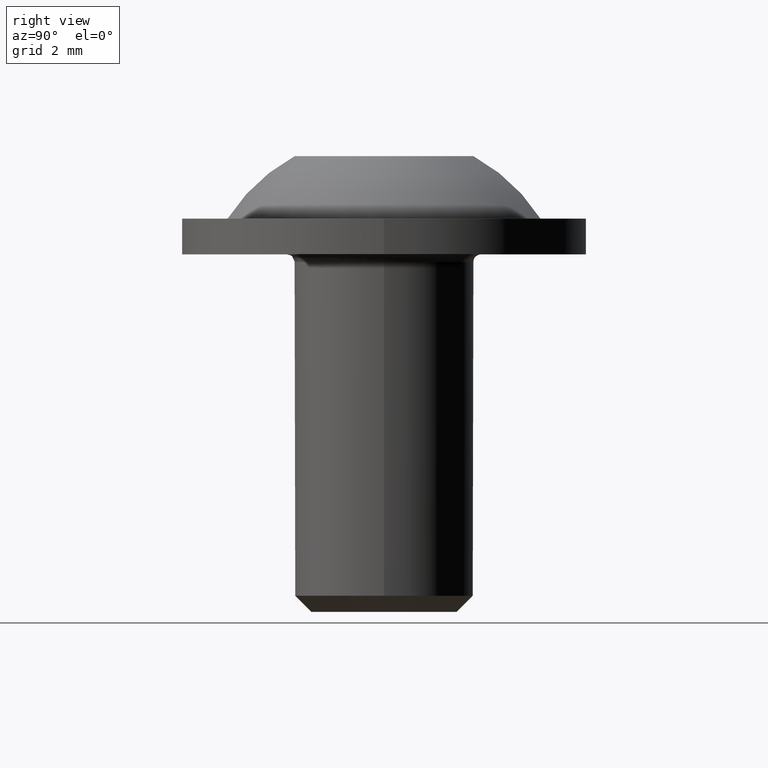
[diagram: clean part render]
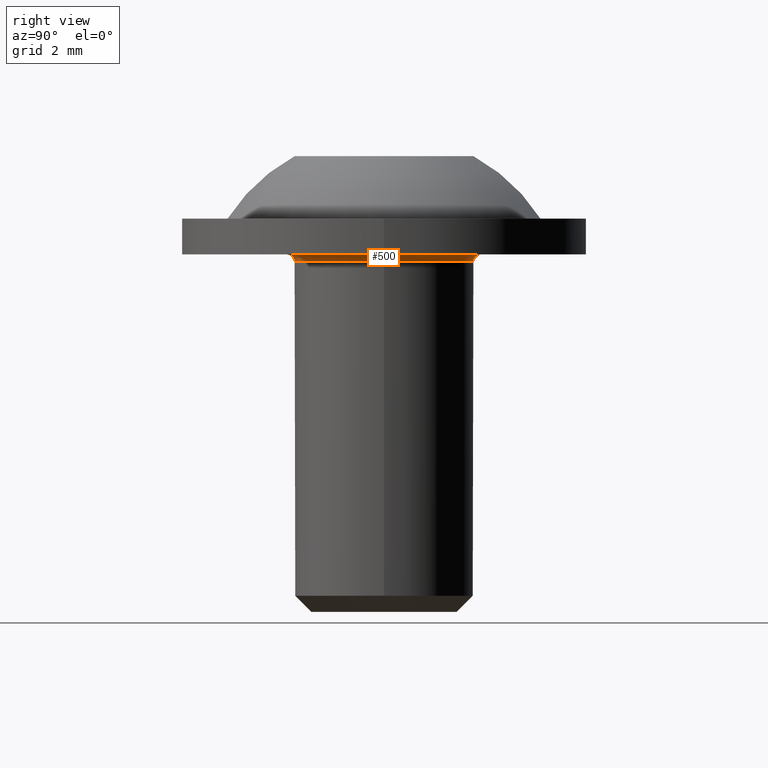
[diagram: same view with one face highlighted and labeled with its STEP entity id]
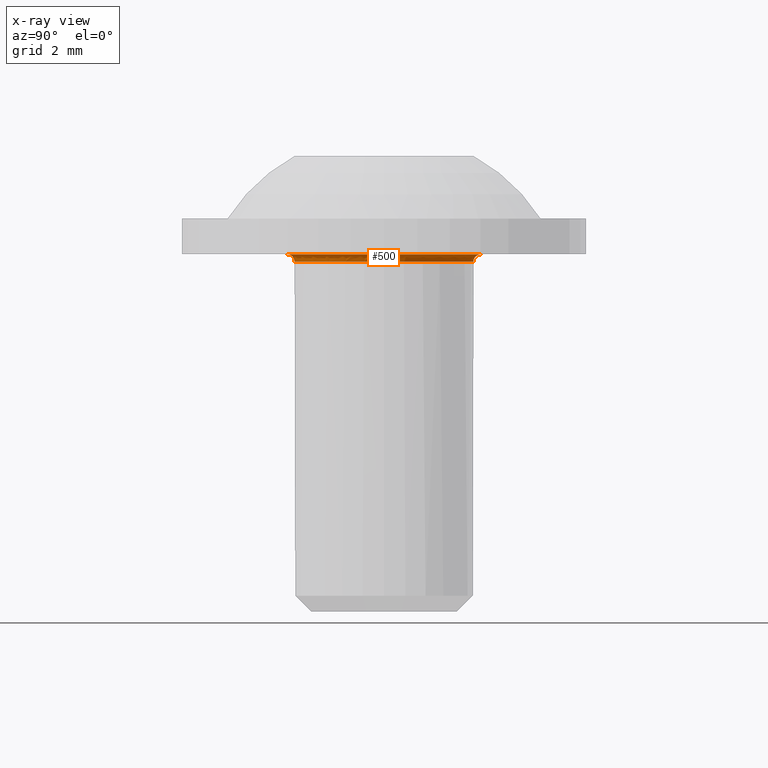
[diagram: x-ray of the same camera — body ghosted, the highlighted face saturated]
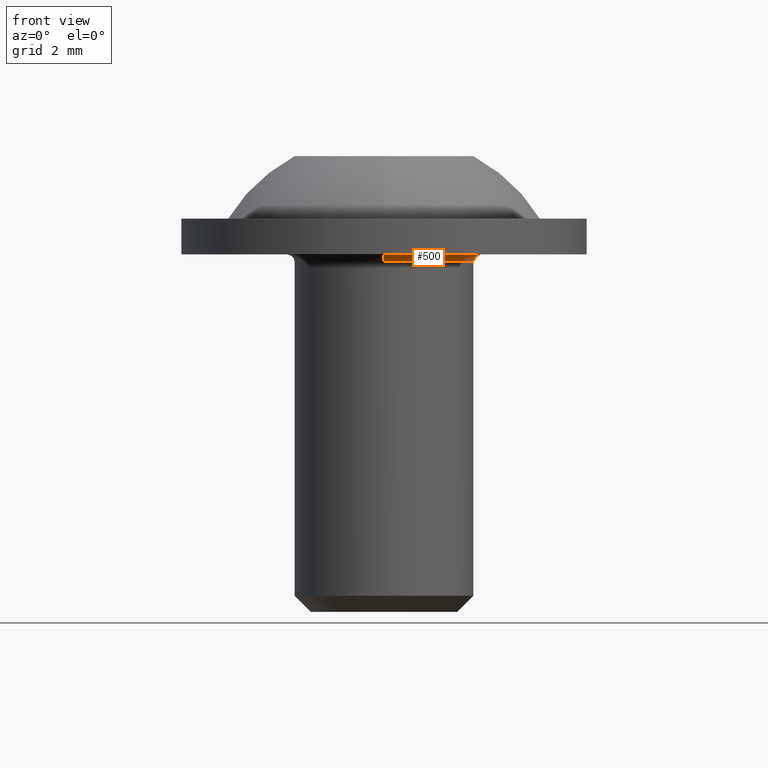
[diagram: same view with one face highlighted and labeled with its STEP entity id]
A machine part, right view. The second image highlights one B-rep face of the part: STEP entity #500.
The next image is the same camera in x-ray: the body ghosted, the highlighted face saturated — about 0% of this face is hidden behind the body in this view.
A second angle (front view) of the same face is appended — the face is thin or edge-on in the first view.
In plain terms, the highlighted face is a freeform B-spline surface patch.
Its self-contained STEP definition (entity closure, byte-faithful):
#18 = EDGE_CURVE ( 'NONE', #319, #805, #562, .T. ) ;
#20 = CARTESIAN_POINT ( 'NONE',  ( -0.05654535655185004300, -2.999467056437264300, -0.1035533905932739700 ) ) ;
#22 = CARTESIAN_POINT ( 'NONE',  ( 0.1967331610649951900, -3.250186501965171900, -2.101755789629280800E-016 ) ) ;
#27 = CARTESIAN_POINT ( 'NONE',  ( 3.200251288869895700, -0.5671268512020346500, -1.472849495180529200E-015 ) ) ;
#30 = CARTESIAN_POINT ( 'NONE',  ( 1.918063414812118300, 3.250000000000000400, -2.160619109139920100E-015 ) ) ;
#34 = CARTESIAN_POINT ( 'NONE',  ( 0.9502853716049202100, -3.111346436906934800, -4.083264692362718200E-016 ) ) ;
#37 = ORIENTED_EDGE ( 'NONE', *, *, #823, .F. ) ;
#42 = CARTESIAN_POINT ( 'NONE',  ( -2.653401398152601300E-016, 3.250000000000000000, -1.679501445324876700E-015 ) ) ;
#45 = CARTESIAN_POINT ( 'NONE',  ( 3.254592687514505900, -0.005911189601626224400, -1.609530619431447100E-015 ) ) ;
#49 = CARTESIAN_POINT ( 'NONE',  ( 2.946741254294893400, 1.373020030122865700, -1.847358107469109000E-015 ) ) ;
#55 = CARTESIAN_POINT ( 'NONE',  ( 3.223141639275131100, -0.4225643411667913700, -1.510031499420600900E-015 ) ) ;
#91 = CARTESIAN_POINT ( 'NONE',  ( 1.684863715533183800, -2.779863225531278700, -6.450396861094946900E-016 ) ) ;
#94 = CARTESIAN_POINT ( 'NONE',  ( 2.933452651182261800, -1.399401093558826100, -1.228806291747248200E-015 ) ) ;
#98 = CARTESIAN_POINT ( 'NONE',  ( 1.537499869225903200, -2.863827826953026600, -5.936744523255818000E-016 ) ) ;
#100 = CARTESIAN_POINT ( 'NONE',  ( 3.103415552632285300, -0.02924988791527054600, -1.718468688308226400E-015 ) ) ;
#101 = CARTESIAN_POINT ( 'NONE',  ( 3.216487811577978000, 0.4711032016250689100, -1.706988109351889700E-015 ) ) ;
#105 = CARTESIAN_POINT ( 'NONE',  ( 1.687097073173494000, 2.778385901959269600, -1.879714822712931200E-015 ) ) ;
#112 = CARTESIAN_POINT ( 'NONE',  ( 1.968074643917910400, 2.596146169307072000, -1.901639026963269000E-015 ) ) ;
#117 = CARTESIAN_POINT ( 'NONE',  ( -5.551115123125941700E-017, -5.551115123125941700E-017, -0.2500000000000002200 ) ) ;
#126 = EDGE_LOOP ( 'NONE', ( #766, #356, #331, #37, #526 ) ) ;
#143 = CARTESIAN_POINT ( 'NONE',  ( 1.713660189567076700, -3.032838619415605800, -0.1035533905932743300 ) ) ;
#144 = CARTESIAN_POINT ( 'NONE',  ( 2.136977715718844500, -2.458878850225933600, -8.167020094635784000E-016 ) ) ;
#146 = CARTESIAN_POINT ( 'NONE',  ( 3.267932724048863100, 1.887348132786133700, -2.157780811103958400E-015 ) ) ;
#151 = DIRECTION ( 'NONE',  ( -1.000000000000000000, 0.0000000000000000000, 2.168404344971008900E-016 ) ) ;
#157 = CARTESIAN_POINT ( 'NONE',  ( 1.713660189567076900, -3.032838619415606700, -0.2500000000000004400 ) ) ;
#169 = CARTESIAN_POINT ( 'NONE',  ( 3.234784899098842800, 0.3151275379656878800, -1.676417324306571800E-015 ) ) ;
#171 = CARTESIAN_POINT ( 'NONE',  ( 1.593432502515446300, 2.833224934025626100, -1.871093821335337100E-015 ) ) ;
#204 = CARTESIAN_POINT ( 'NONE',  ( 1.921413557079327800, -2.633934396908540700, -7.299670113193950600E-016 ) ) ;
#206 = CARTESIAN_POINT ( 'NONE',  ( 3.086153048048396700, -1.860803067134629800, -1.307949140218933200E-015 ) ) ;
#216 = CARTESIAN_POINT ( 'NONE',  ( 2.595009530792326200, -1.969710820355233400, -1.027022624819259700E-015 ) ) ;
#219 = CARTESIAN_POINT ( 'NONE',  ( 3.120678057216172500, 1.802303291304088800, -2.128988236397519400E-015 ) ) ;
#220 = CARTESIAN_POINT ( 'NONE',  ( 0.3927850192817486400, -3.232258485547816900, -2.576886556879665800E-016 ) ) ;
#224 = CARTESIAN_POINT ( 'NONE',  ( 2.980059080937395200, 1.297228728080407800, -1.837927101404134100E-015 ) ) ;
#231 = CARTESIAN_POINT ( 'NONE',  ( 1.731800938332086000, 2.750747483404941900, -1.883504113062044100E-015 ) ) ;
#237 = CARTESIAN_POINT ( 'NONE',  ( 2.377931717938467100, 2.218404081985574400, -1.908769986497034400E-015 ) ) ;
#268 = AXIS2_PLACEMENT_3D ( 'NONE', #354, #822, #151 ) ;
#278 = DIRECTION ( 'NONE',  ( 0.0000000000000000000, -1.000000000000000000, 2.168404344971006900E-016 ) ) ;
#279 = CARTESIAN_POINT ( 'NONE',  ( 2.455018695421591800, -2.141507776417122400, -9.577918278501550400E-016 ) ) ;
#281 = CARTESIAN_POINT ( 'NONE',  ( 3.016553283737411800, 1.742167507187200300, -0.1035533905932756900 ) ) ;
#282 = CARTESIAN_POINT ( 'NONE',  ( 2.898650958359057400, -1.470079708051276200, -1.205384958581972600E-015 ) ) ;
#293 = CARTESIAN_POINT ( 'NONE',  ( 1.856465205364333600, -3.285575171033573200, -6.957523522490052500E-016 ) ) ;
#294 = CARTESIAN_POINT ( 'NONE',  ( 3.212088473706373300, -0.4957875259074479600, -1.491318390511623300E-015 ) ) ;
#306 = CARTESIAN_POINT ( 'NONE',  ( 3.245860915477729600, 0.1914601940857455800, -1.651417027473615400E-015 ) ) ;
#314 = EDGE_CURVE ( 'NONE', #654, #704, #772, .T. ) ;
#319 = VERTEX_POINT ( 'NONE', #650 ) ;
#331 = ORIENTED_EDGE ( 'NONE', *, *, #437, .T. ) ;
#339 = CARTESIAN_POINT ( 'NONE',  ( -5.551115123125800000E-017, -3.250000000000000400, -0.2500000000000002800 ) ) ;
#342 = CARTESIAN_POINT ( 'NONE',  ( 2.967581888453897100, -1.327206727355563400, -1.252414874275037700E-015 ) ) ;
#346 = CARTESIAN_POINT ( 'NONE',  ( -0.06125746959783753100, -3.249422644473702900, -2.779598520082842700E-016 ) ) ;
#348 = CARTESIAN_POINT ( 'NONE',  ( 0.6125768487453733300, -3.191846746827698300, -3.154654541854092700E-016 ) ) ;
#353 = CARTESIAN_POINT ( 'NONE',  ( -0.05654535655185007100, -2.999467056437264300, -0.2500000000000000600 ) ) ;
#354 = CARTESIAN_POINT ( 'NONE',  ( -5.551115123125941700E-017, -5.551115123125941700E-017, -0.2500000000000002200 ) ) ;
#355 = CARTESIAN_POINT ( 'NONE',  ( -3.800756725772969700E-016, 3.103553390593274000, -1.724994074290065500E-015 ) ) ;
#356 = ORIENTED_EDGE ( 'NONE', *, *, #18, .F. ) ;
#365 = CARTESIAN_POINT ( 'NONE',  ( 2.453829869173531600, 2.133936248549697100, -1.906867134798422300E-015 ) ) ;
#372 = CARTESIAN_POINT ( 'NONE',  ( 3.170901147882818600, 0.7521386339442202000, -1.759268238161089100E-015 ) ) ;
#385 = CARTESIAN_POINT ( 'NONE',  ( 3.000000000000000000, 3.118828885129464800E-016, -0.2500000000000011100 ) ) ;
#403 = DIRECTION ( 'NONE',  ( -1.224646799147353500E-016, 1.000000000000000000, -2.168404344971006900E-016 ) ) ;
#411 = CARTESIAN_POINT ( 'NONE',  ( -4.229051909754639100E-016, 3.000000000000000000, -0.2500000000000013900 ) ) ;
#414 = CARTESIAN_POINT ( 'NONE',  ( 1.772811963885204200, -3.137525526803175000, -7.328395038980890900E-016 ) ) ;
#415 = CARTESIAN_POINT ( 'NONE',  ( 3.082539021463400100, -1.058918781203105800, -1.337512376467017100E-015 ) ) ;
#424 = CARTESIAN_POINT ( 'NONE',  ( -4.028898260843849500E-008, -3.250060494635443700, -2.187785569541962000E-016 ) ) ;
#426 = CARTESIAN_POINT ( 'NONE',  ( 2.999866761150550500, -0.02827393400473690900, -0.1035533905932753000 ) ) ;
#427 = CARTESIAN_POINT ( 'NONE',  ( 3.001661735042580500, 1.246350407341869600, -1.831426597572613500E-015 ) ) ;
#431 = CARTESIAN_POINT ( 'NONE',  ( 3.012717205118384800, 1.219320057715062000, -1.827879461753986200E-015 ) ) ;
#434 = CARTESIAN_POINT ( 'NONE',  ( 0.9997877168971827100, 3.094315068477676300, -1.797251855201153800E-015 ) ) ;
#437 = EDGE_CURVE ( 'NONE', #319, #539, #585, .T. ) ;
#440 = CARTESIAN_POINT ( 'NONE',  ( 0.7235756979945411300, 3.169209171893416300, -1.752550298192533300E-015 ) ) ;
#441 = CARTESIAN_POINT ( 'NONE',  ( -4.104577003491771400E-016, 3.000000000000000000, -0.2500000000000008900 ) ) ;
#459 = EDGE_CURVE ( 'NONE', #805, #654, #696, .T. ) ;
#476 = CARTESIAN_POINT ( 'NONE',  ( 1.588564924282196400, -2.835904619535583000, -6.112133698602769700E-016 ) ) ;
#478 = CARTESIAN_POINT ( 'NONE',  ( -3.980102097228899700E-016, 3.250000000000000400, -1.734723475976807100E-015 ) ) ;
#482 = CARTESIAN_POINT ( 'NONE',  ( 0.6925848883237418800, -3.175498513564348100, -3.368608447205969200E-016 ) ) ;
#486 = CARTESIAN_POINT ( 'NONE',  ( 1.770520075211186000, 3.000000000000000000, -0.1035533905932756900 ) ) ;
#489 = CARTESIAN_POINT ( 'NONE',  ( 2.983180238563690100, -1.798715375196674000, -0.2500000000000010500 ) ) ;
#490 = CARTESIAN_POINT ( 'NONE',  ( 1.200832672871792200, -3.025791176587877100, -4.829562297379108800E-016 ) ) ;
#496 = CARTESIAN_POINT ( 'NONE',  ( -2.775557561562906100E-017, -3.000000000000000000, -0.2499999999999995800 ) ) ;
#497 = CARTESIAN_POINT ( 'NONE',  ( 3.226191568282555300, 0.3938304924730498500, -1.691984788000499000E-015 ) ) ;
#500 = ADVANCED_FACE ( 'NONE', ( #655 ), #840, .F. ) ;
#504 = CARTESIAN_POINT ( 'NONE',  ( 2.724127953719166100, 1.783035449612136600, -1.888969736925380800E-015 ) ) ;
#526 = ORIENTED_EDGE ( 'NONE', *, *, #314, .F. ) ;
#538 = AXIS2_PLACEMENT_3D ( 'NONE', #117, #579, #786 ) ;
#539 = VERTEX_POINT ( 'NONE', #496 ) ;
#545 = CARTESIAN_POINT ( 'NONE',  ( 3.231778591777331800, -1.948608323129730200, -1.297999545323858400E-015 ) ) ;
#549 = CARTESIAN_POINT ( 'NONE',  ( 2.999866761150551000, -0.02827393400473694400, -0.2500000000000013900 ) ) ;
#552 = CARTESIAN_POINT ( 'NONE',  ( 3.204157830774945200, -0.5445719594936845300, -1.478725113752966100E-015 ) ) ;
#559 = CARTESIAN_POINT ( 'NONE',  ( 2.593852754031554600, 1.961292137429455600, -1.899623767500857500E-015 ) ) ;
#562 = B_SPLINE_CURVE_WITH_KNOTS ( 'NONE', 3,
 ( #424, #22, #220, #348, #687, #482, #678, #34, #490, #813, #98, #476, #91, #204, #144, #279, #216, #811, #742, #282, #747, #94, #342, #415, #621, #27, #552, #294, #55, #628, #45, #306, #169, #828, #497, #101, #372, #765, #431, #427, #224, #49, #761, #504, #559, #365, #237, #763, #112, #231, #105, #171, #695, #838, #434, #842, #638, #565, #440, #700, #690, #42 ),
 .UNSPECIFIED., .F., .F.,
 ( 4, 2, 2, 1, 1, 1, 2, 2, 1, 2, 2, 2, 2, 1, 1, 2, 2, 1, 1, 1, 2, 2, 1, 1, 2, 2, 1, 1, 1, 2, 2, 2, 2, 1, 1, 2, 2, 1, 1, 4 ),
 ( 0.3330887359122071700, 0.3747706899176940200, 0.3799809341683798600, 0.3851911784190656900, 0.3956116669204374200, 0.4164526439231808200, 0.4372936209259242200, 0.4477141094272959500, 0.4581345979286676800, 0.4998165519341545800, 0.5414985059396415500, 0.5623394829423848900, 0.5675497271930707300, 0.5727599714437566800, 0.5831804599451284600, 0.6248624139506154800, 0.6300726582013013200, 0.6352829024519871500, 0.6457033909533589400, 0.6665443679561025000, 0.6873853449588458500, 0.6925955892095317900, 0.6978058334602177400, 0.7082263219615894100, 0.7499082759670763200, 0.7551185202177622700, 0.7603287644684482100, 0.7707492529698200000, 0.7915902299725636700, 0.8124312069753072400, 0.8332721839780510300, 0.8749541379835381600, 0.8853746264849098300, 0.8957951149862817300, 0.9166360919890252900, 0.9374770689917688600, 0.9426873132424549200, 0.9478975574931407500, 0.9583180459945126500, 1.000000000000000000 ),
 .UNSPECIFIED. ) ;
#565 = CARTESIAN_POINT ( 'NONE',  ( 0.7969915606915666300, 3.150900459049116500, -1.764786543510126000E-015 ) ) ;
#579 = DIRECTION ( 'NONE',  ( -2.220446049250310100E-016, -2.220446049250310100E-016, -1.000000000000000000 ) ) ;
#585 = CIRCLE ( 'NONE', #804, 0.2500000000000002200 ) ;
#608 = CARTESIAN_POINT ( 'NONE',  ( -4.535213609541477500E-016, 3.250000000000000400, -0.2500000000000017200 ) ) ;
#611 = CARTESIAN_POINT ( 'NONE',  ( 3.249855657913097100, -0.03063009517179829400, -1.727890178213908600E-015 ) ) ;
#613 = CARTESIAN_POINT ( 'NONE',  ( 2.983180238563689600, -1.798715375196673800, -0.1035533905932749100 ) ) ;
#621 = CARTESIAN_POINT ( 'NONE',  ( 3.156186707068530800, -0.8041864965983348500, -1.410427377217568700E-015 ) ) ;
#623 = CARTESIAN_POINT ( 'NONE',  ( 3.016553283737412300, 1.742167507187200300, -0.2500000000000017800 ) ) ;
#628 = CARTESIAN_POINT ( 'NONE',  ( 3.243032767136869500, -0.2513845029094922100, -1.552457776605147100E-015 ) ) ;
#638 = CARTESIAN_POINT ( 'NONE',  ( 0.8458515475534884600, 3.138113421507066700, -1.772796347290338100E-015 ) ) ;
#650 = CARTESIAN_POINT ( 'NONE',  ( -4.028898260843849500E-008, -3.250060494635443700, -2.187785569541962000E-016 ) ) ;
#654 = VERTEX_POINT ( 'NONE', #441 ) ;
#655 = FACE_OUTER_BOUND ( 'NONE', #126, .T. ) ;
#662 = DIRECTION ( 'NONE',  ( -1.000000000000000000, 4.930380657631310600E-032, 2.220446049250310100E-016 ) ) ;
#677 = CARTESIAN_POINT ( 'NONE',  ( 1.770520075211185800, 3.000000000000000000, -0.2500000000000017800 ) ) ;
#678 = CARTESIAN_POINT ( 'NONE',  ( 0.7705481499267929900, -3.158207094292753100, -3.580116327026678100E-016 ) ) ;
#682 = CARTESIAN_POINT ( 'NONE',  ( -2.653401398152601300E-016, 3.250000000000000000, -1.679501445324876700E-015 ) ) ;
#687 = CARTESIAN_POINT ( 'NONE',  ( 0.6404020419792639800, -3.186405744276959300, -3.228520334857659500E-016 ) ) ;
#690 = CARTESIAN_POINT ( 'NONE',  ( 0.2028250484905075900, 3.250000000000000400, -1.654859593467449900E-015 ) ) ;
#695 = CARTESIAN_POINT ( 'NONE',  ( 1.451208881346375000, 2.911777442600829600, -1.856955994294294500E-015 ) ) ;
#696 = CIRCLE ( 'NONE', #859, 0.2500000000000002200 ) ;
#700 = CARTESIAN_POINT ( 'NONE',  ( 0.4529994949932690300, 3.226750840832637700, -1.705247129241337500E-015 ) ) ;
#704 = VERTEX_POINT ( 'NONE', #385 ) ;
#741 = DIRECTION ( 'NONE',  ( 1.000000000000000000, 1.224646799147352700E-016, -2.220446049250310600E-016 ) ) ;
#742 = CARTESIAN_POINT ( 'NONE',  ( 2.834044170173270600, -1.594743241997207000, -1.163358504680202400E-015 ) ) ;
#747 = CARTESIAN_POINT ( 'NONE',  ( 2.910082650355526400, -1.447313987992888900, -1.212978309431152400E-015 ) ) ;
#760 = CARTESIAN_POINT ( 'NONE',  ( -3.903875114471370500E-016, 3.000000000000000000, -0.1035533905932753000 ) ) ;
#761 = CARTESIAN_POINT ( 'NONE',  ( 2.862602740402632400, 1.546183148097808500, -1.867125540511256900E-015 ) ) ;
#763 = CARTESIAN_POINT ( 'NONE',  ( 2.141421024098796500, 2.455330253247336000, -1.908862241017077600E-015 ) ) ;
#765 = CARTESIAN_POINT ( 'NONE',  ( 3.099136840144653500, 1.000662255532601900, -1.798516690171779700E-015 ) ) ;
#766 = ORIENTED_EDGE ( 'NONE', *, *, #459, .F. ) ;
#770 = CIRCLE ( 'NONE', #268, 3.000000000000000000 ) ;
#772 = CIRCLE ( 'NONE', #538, 3.000000000000000000 ) ;
#786 = DIRECTION ( 'NONE',  ( -1.000000000000000000, 0.0000000000000000000, 2.168404344971008900E-016 ) ) ;
#804 = AXIS2_PLACEMENT_3D ( 'NONE', #339, #662, #278 ) ;
#805 = VERTEX_POINT ( 'NONE', #682 ) ;
#811 = CARTESIAN_POINT ( 'NONE',  ( 2.777745465740864500, -1.691051821972673300, -1.129472880505174600E-015 ) ) ;
#812 = CARTESIAN_POINT ( 'NONE',  ( 1.831634527511711900, 3.103553390593274400, -2.131698639318449600E-015 ) ) ;
#813 = CARTESIAN_POINT ( 'NONE',  ( 1.394635678393754800, -2.937494740008785900, -5.455948889088105800E-016 ) ) ;
#822 = DIRECTION ( 'NONE',  ( -2.220446049250310100E-016, -2.220446049250310100E-016, -1.000000000000000000 ) ) ;
#823 = EDGE_CURVE ( 'NONE', #704, #539, #770, .T. ) ;
#824 = CARTESIAN_POINT ( 'NONE',  ( -0.05849717768293323500, -3.103002050992898800, -3.338729406099260000E-016 ) ) ;
#828 = CARTESIAN_POINT ( 'NONE',  ( 3.232054301694996300, 0.3421760903370633100, -1.681816995009921400E-015 ) ) ;
#838 = CARTESIAN_POINT ( 'NONE',  ( 1.205535686821263400, 3.024168092604505400, -1.827361324352628700E-015 ) ) ;
#840 =( BOUNDED_SURFACE ( )  B_SPLINE_SURFACE ( 3, 3, ( 
 ( #478, #30, #146, #611, #545, #293, #346 ),
 ( #355, #812, #219, #100, #206, #414, #824 ),
 ( #760, #486, #281, #426, #613, #143, #20 ),
 ( #411, #677, #623, #549, #489, #157, #353 ) ),
 .UNSPECIFIED., .F., .F., .F. ) 
 B_SPLINE_SURFACE_WITH_KNOTS ( ( 4, 4 ),
 ( 4, 3, 4 ),
 ( 0.0000000000000000000, 1.000000000000000000 ),
 ( 0.0000000000000000000, 0.5000000000000000000, 1.000000000000000000 ),
 .UNSPECIFIED. ) 
 GEOMETRIC_REPRESENTATION_ITEM ( )  RATIONAL_B_SPLINE_SURFACE ( (
 ( 1.000000000000000000, 0.8025111852619915000, 0.8025111852619915000, 1.000000000000000000, 0.8025111852619915000, 0.8025111852619915000, 1.000000000000000000),
 ( 0.8047378541243652700, 0.6458111291385360000, 0.6458111291385360000, 0.8047378541243652700, 0.6458111291385360000, 0.6458111291385360000, 0.8047378541243652700),
 ( 0.8047378541243652700, 0.6458111291385360000, 0.6458111291385360000, 0.8047378541243652700, 0.6458111291385360000, 0.6458111291385360000, 0.8047378541243652700),
 ( 1.000000000000000000, 0.8025111852619915000, 0.8025111852619915000, 1.000000000000000000, 0.8025111852619915000, 0.8025111852619915000, 1.000000000000000000) ) ) 
 REPRESENTATION_ITEM ( '' )  SURFACE ( )  );
#842 = CARTESIAN_POINT ( 'NONE',  ( 0.8683172937246337300, 3.131980195857853900, -1.776422895357060600E-015 ) ) ;
#859 = AXIS2_PLACEMENT_3D ( 'NONE', #608, #741, #403 ) ;